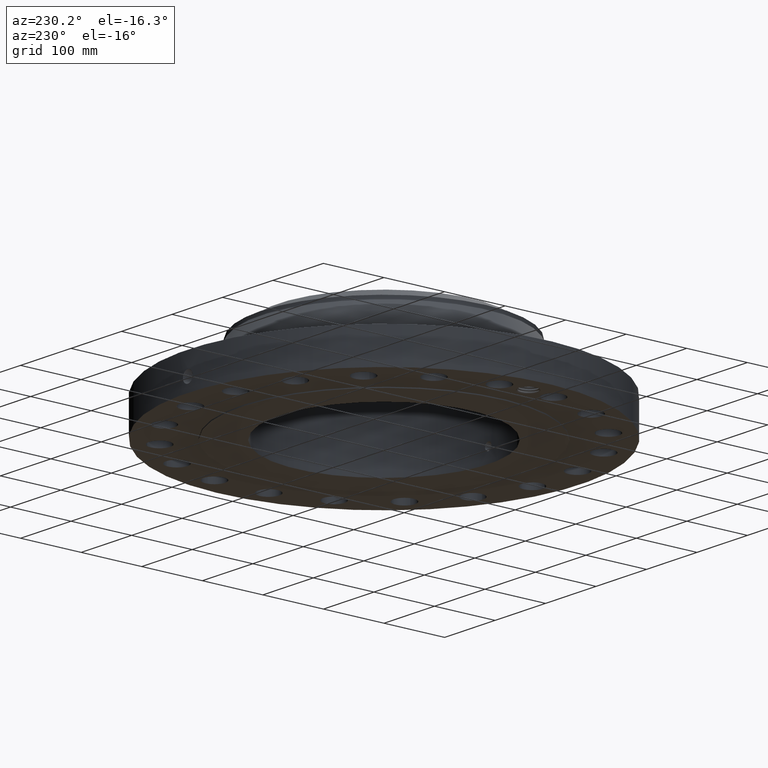
[diagram: clean part render]
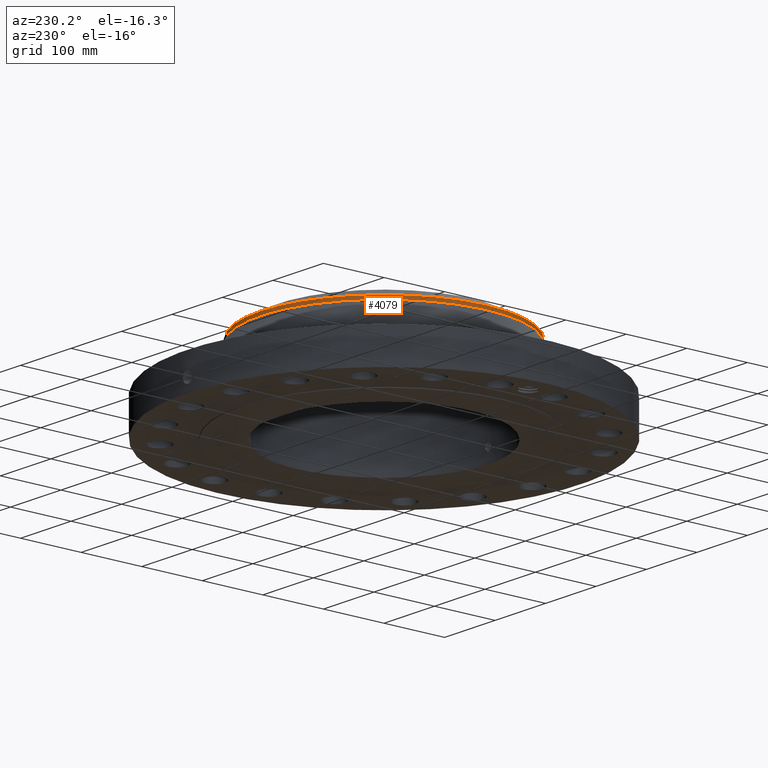
[diagram: same view with one face highlighted and labeled with its STEP entity id]
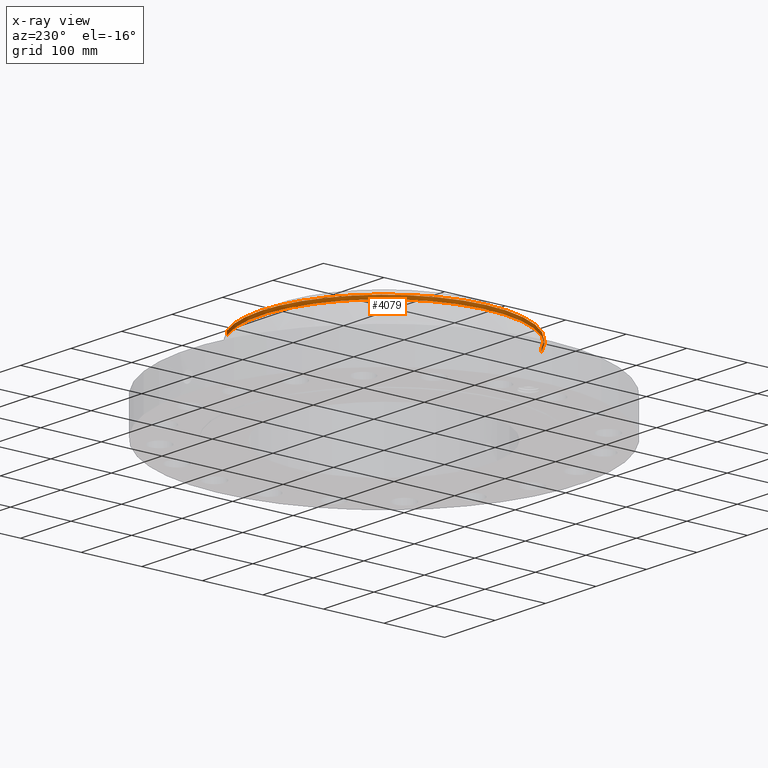
[diagram: x-ray of the same camera — body ghosted, the highlighted face saturated]
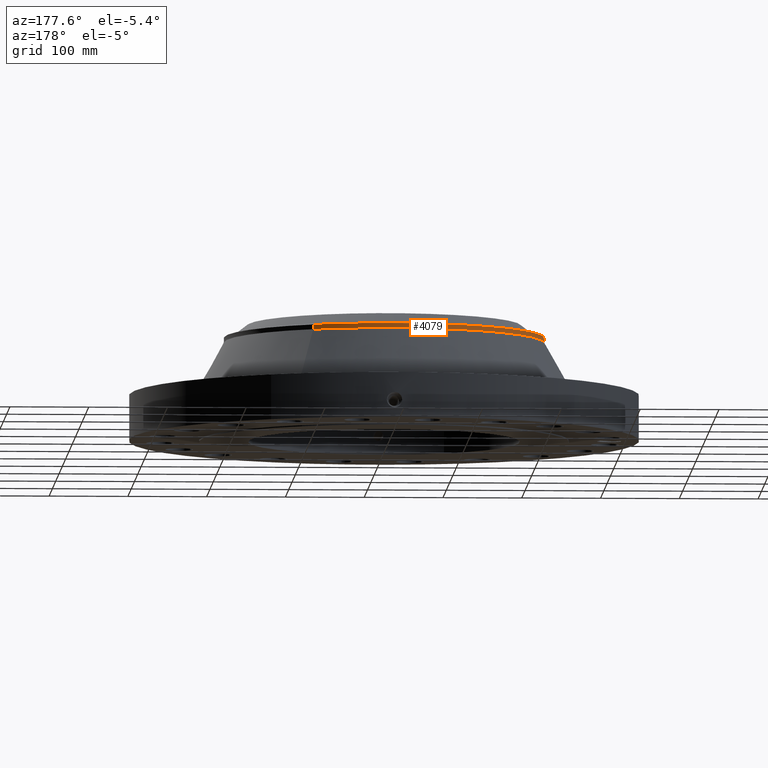
[diagram: same view with one face highlighted and labeled with its STEP entity id]
A machine part, auxiliary view. The second image highlights one B-rep face of the part: STEP entity #4079.
The next image is the same camera in x-ray: the body ghosted, the highlighted face saturated — about 1% of this face is hidden behind the body in this view.
A second angle (auxiliary view) of the same face is appended — the face is thin or edge-on in the first view.
In plain terms, the highlighted cylindrical surface (partial cylindrical patch) has radius 203.2 mm, axis along (0, 0, -1).
Its self-contained STEP definition (entity closure, byte-faithful):
#3261=AXIS2_PLACEMENT_3D('Circle Axis2P3D',#3259,#3260,$) ;
#4024=AXIS2_PLACEMENT_3D('Cylinder Axis2P3D',#4021,#4022,#4023) ;
#4062=AXIS2_PLACEMENT_3D('Circle Axis2P3D',#4060,#4061,$) ;
#4069=AXIS2_PLACEMENT_3D('Circle Axis2P3D',#4067,#4068,$) ;
#3237=CARTESIAN_POINT('Vertex',(3.83540430885,7.02066049515,4.97716976636)) ;
#3244=CARTESIAN_POINT('Vertex',(-3.83540430885,-7.02066049515,4.97716976636)) ;
#3259=CARTESIAN_POINT('Axis2P3D Location',(0.,0.,4.97716976636)) ;
#4021=CARTESIAN_POINT('Axis2P3D Location',(0.,0.,2.90500000001)) ;
#4026=CARTESIAN_POINT('Line Origine',(-3.83540430885,-7.02066049515,5.09528000258)) ;
#4030=CARTESIAN_POINT('Vertex',(-3.83540430885,-7.02066049515,5.2133902388)) ;
#4033=CARTESIAN_POINT('Line Origine',(3.83540430885,7.02066049515,5.09528000258)) ;
#4037=CARTESIAN_POINT('Vertex',(3.83540430885,7.02066049515,5.2133902388)) ;
#4060=CARTESIAN_POINT('Axis2P3D Location',(0.,0.,5.2133902388)) ;
#4064=CARTESIAN_POINT('Vertex',(-3.83540430885,7.02066049515,5.2133902388)) ;
#4067=CARTESIAN_POINT('Axis2P3D Location',(0.,0.,5.2133902388)) ;
#3260=DIRECTION('Axis2P3D Direction',(0.,0.,-0.0393700787402)) ;
#4022=DIRECTION('Axis2P3D Direction',(0.,0.,-0.0393700787402)) ;
#4023=DIRECTION('Axis2P3D XDirection',(-0.0188750212049,-0.0345504945626,0.)) ;
#4027=DIRECTION('Vector Direction',(0.,0.,-0.0393700787402)) ;
#4034=DIRECTION('Vector Direction',(0.,0.,-0.0393700787402)) ;
#4061=DIRECTION('Axis2P3D Direction',(0.,0.,-0.0393700787402)) ;
#4068=DIRECTION('Axis2P3D Direction',(0.,0.,-0.0393700787402)) ;
#4028=VECTOR('Line Direction',#4027,0.0393700787402) ;
#4035=VECTOR('Line Direction',#4034,0.0393700787402) ;
#4073=ORIENTED_EDGE('',*,*,#4039,.F.) ;
#4074=ORIENTED_EDGE('',*,*,#3263,.F.) ;
#4075=ORIENTED_EDGE('',*,*,#4032,.T.) ;
#4076=ORIENTED_EDGE('',*,*,#4066,.F.) ;
#4077=ORIENTED_EDGE('',*,*,#4071,.T.) ;
#4079=ADVANCED_FACE('PartBody',(#4078),#4025,.T.) ;
#3262=CIRCLE('generated circle',#3261,8.00000000003) ;
#4063=CIRCLE('generated circle',#4062,8.00000000003) ;
#4070=CIRCLE('generated circle',#4069,8.00000000003) ;
#4025=CYLINDRICAL_SURFACE('generated cylinder',#4024,8.00000000003) ;
#3263=EDGE_CURVE('',#3245,#3238,#3262,.T.) ;
#4032=EDGE_CURVE('',#3245,#4031,#4029,.F.) ;
#4039=EDGE_CURVE('',#3238,#4038,#4036,.F.) ;
#4066=EDGE_CURVE('',#4065,#4031,#4063,.F.) ;
#4071=EDGE_CURVE('',#4065,#4038,#4070,.T.) ;
#4072=EDGE_LOOP('',(#4073,#4074,#4075,#4076,#4077)) ;
#4078=FACE_OUTER_BOUND('',#4072,.T.) ;
#4029=LINE('Line',#4026,#4028) ;
#4036=LINE('Line',#4033,#4035) ;
#3238=VERTEX_POINT('',#3237) ;
#3245=VERTEX_POINT('',#3244) ;
#4031=VERTEX_POINT('',#4030) ;
#4038=VERTEX_POINT('',#4037) ;
#4065=VERTEX_POINT('',#4064) ;